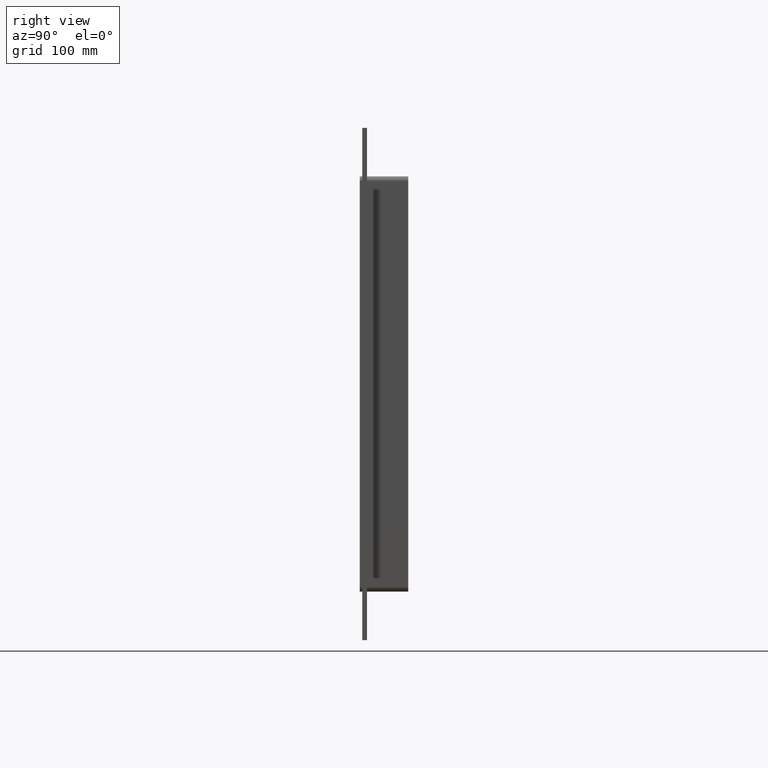
[diagram: clean part render]
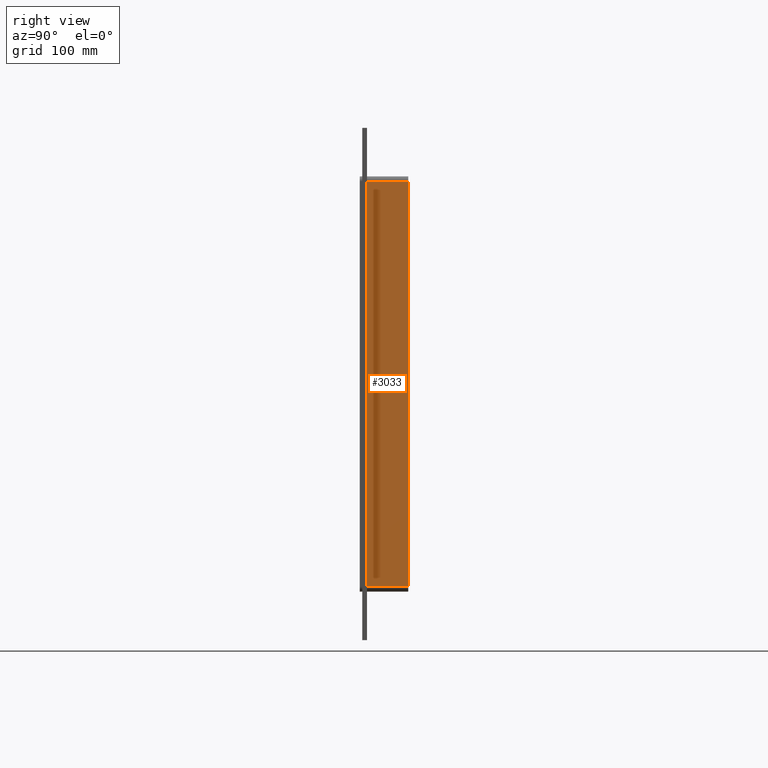
[diagram: same view with one face highlighted and labeled with its STEP entity id]
A machine part, right view. The second image highlights one B-rep face of the part: STEP entity #3033.
In plain terms, the highlighted planar face has unit normal (1, 0, 0).
Its self-contained STEP definition (entity closure, byte-faithful):
#1377=CARTESIAN_POINT('',(262.0,57.0,-251.25));
#1378=VERTEX_POINT('',#1377);
#1428=CARTESIAN_POINT('',(262.0,57.0,251.25));
#1429=VERTEX_POINT('',#1428);
#1437=CARTESIAN_POINT('',(262.0,57.0,251.25));
#1438=DIRECTION('',(0.0,0.0,-1.0));
#1439=VECTOR('',#1438,502.5);
#1440=LINE('',#1437,#1439);
#1441=EDGE_CURVE('',#1429,#1378,#1440,.T.);
#2642=CARTESIAN_POINT('',(262.0,6.000000000000001,-251.25));
#2643=VERTEX_POINT('',#2642);
#2651=CARTESIAN_POINT('',(262.0,6.000000000000001,251.25));
#2652=VERTEX_POINT('',#2651);
#2653=CARTESIAN_POINT('',(262.0,6.000000000000001,251.25));
#2654=DIRECTION('',(0.0,0.0,-1.0));
#2655=VECTOR('',#2654,502.5);
#2656=LINE('',#2653,#2655);
#2657=EDGE_CURVE('',#2652,#2643,#2656,.T.);
#2984=CARTESIAN_POINT('',(262.0,6.000000000000001,251.25));
#2985=DIRECTION('',(0.0,1.0,0.0));
#2986=VECTOR('',#2985,51.0);
#2987=LINE('',#2984,#2986);
#2988=EDGE_CURVE('',#2652,#1429,#2987,.T.);
#3017=CARTESIAN_POINT('',(262.0,0.0,257.25));
#3018=DIRECTION('',(1.0,0.0,0.0));
#3019=DIRECTION('',(0.0,0.0,-1.0));
#3020=AXIS2_PLACEMENT_3D('',#3017,#3018,#3019);
#3021=PLANE('',#3020);
#3022=ORIENTED_EDGE('',*,*,#2657,.T.);
#3023=CARTESIAN_POINT('',(262.0,57.0,-251.25));
#3024=DIRECTION('',(0.0,-1.0,0.0));
#3025=VECTOR('',#3024,51.0);
#3026=LINE('',#3023,#3025);
#3027=EDGE_CURVE('',#1378,#2643,#3026,.T.);
#3028=ORIENTED_EDGE('',*,*,#3027,.F.);
#3029=ORIENTED_EDGE('',*,*,#1441,.F.);
#3030=ORIENTED_EDGE('',*,*,#2988,.F.);
#3031=EDGE_LOOP('',(#3022,#3028,#3029,#3030));
#3032=FACE_OUTER_BOUND('',#3031,.T.);
#3033=ADVANCED_FACE('',(#3032),#3021,.T.);